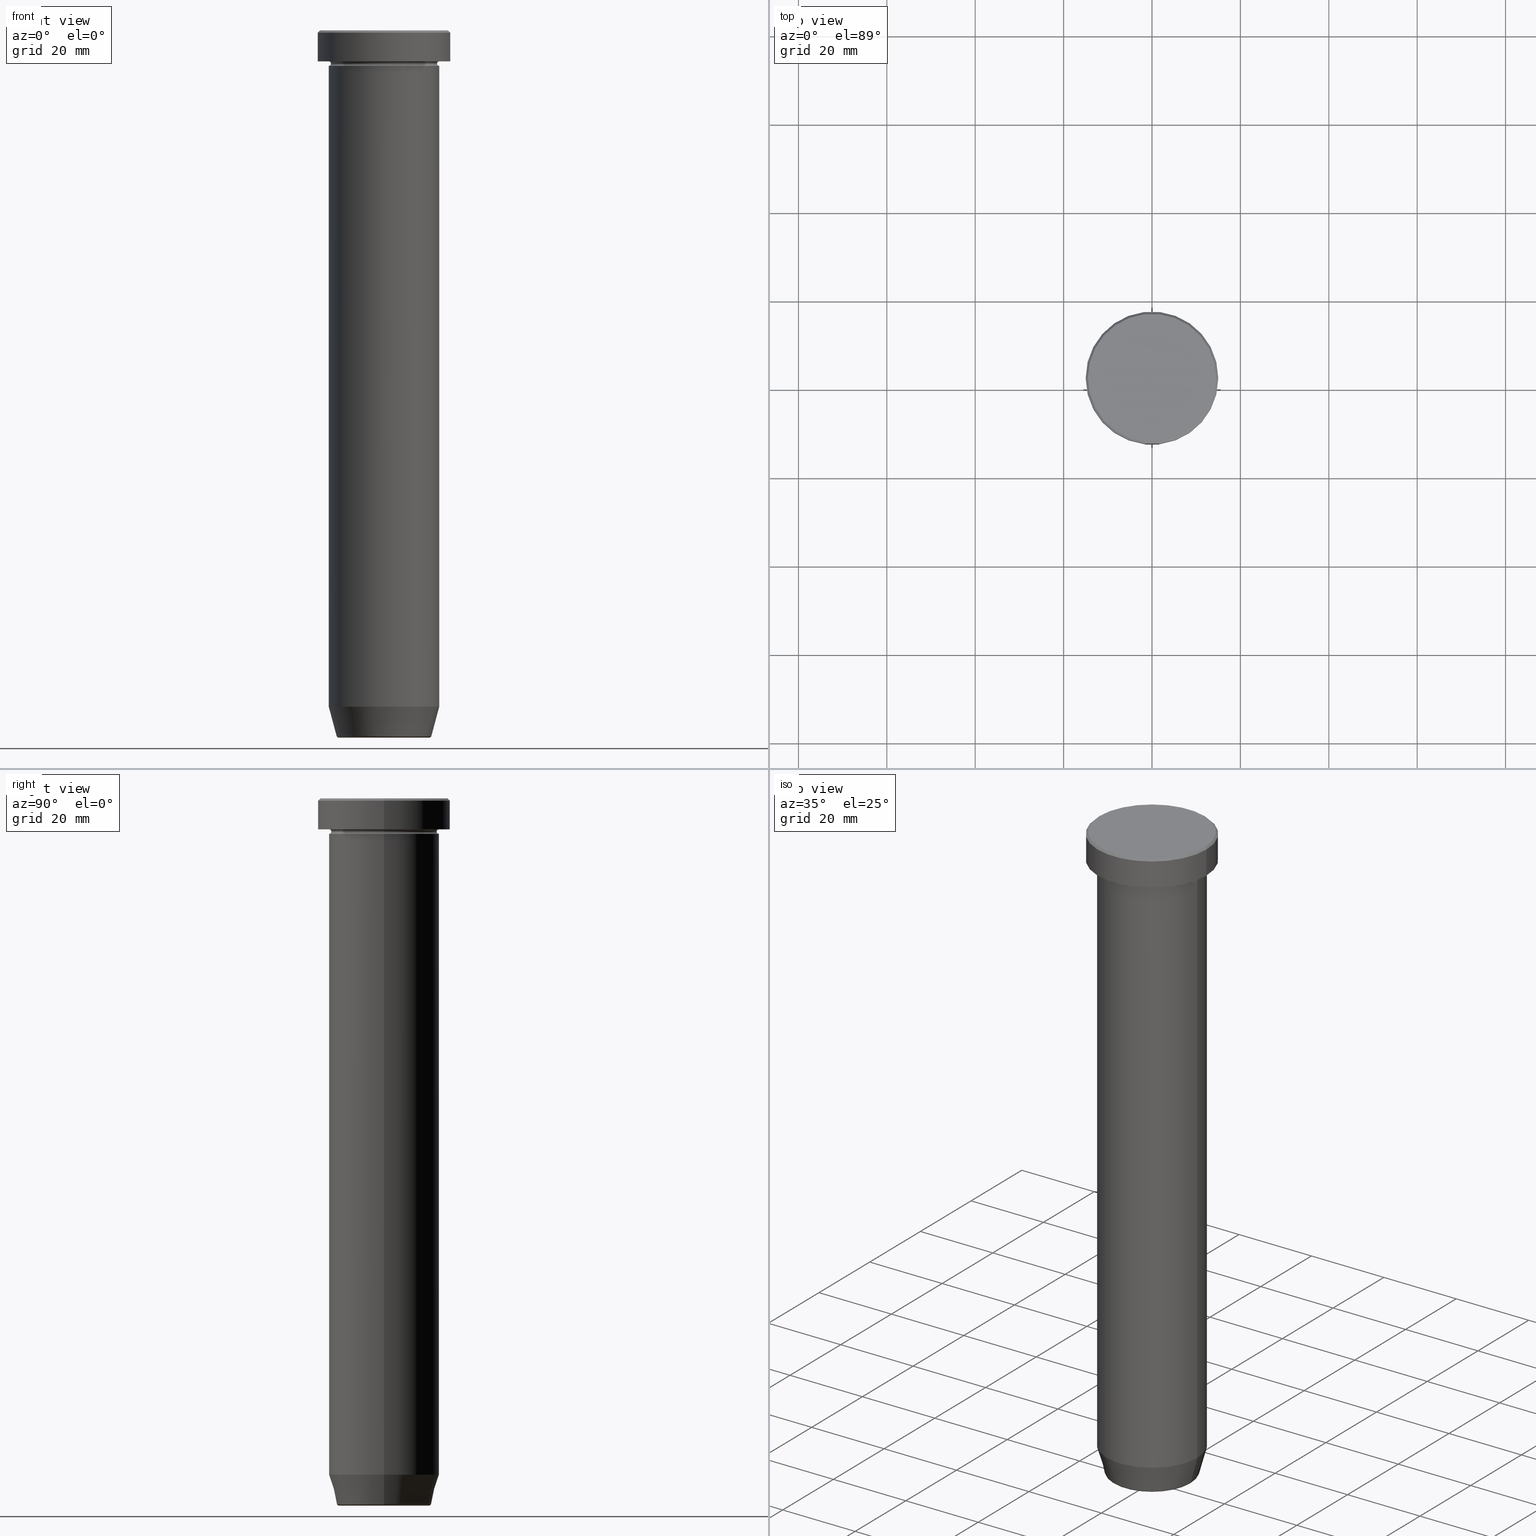
[diagram: canonical four-view strip — front | top / right | iso, engineering-drawing reading convention]
A machine part, canonical four-view strip (front | top / right | iso — engineering-drawing reading convention). The complete STEP part file that produces these views, byte-faithful:
ISO-10303-21;
HEADER;
FILE_DESCRIPTION (( 'STEP AP203' ),
    '1' );
FILE_NAME ('b4bc.STEP',
    '2024-01-02T20:44:51',
    ( '' ),
    ( '' ),
    'SwSTEP 2.0',
    'SolidWorks 2019',
    '' );
FILE_SCHEMA (( 'CONFIG_CONTROL_DESIGN' ));
ENDSEC;

DATA;
#1 = ORIENTED_EDGE ( 'NONE', *, *, #61, .T. ) ;
#2 = CONICAL_SURFACE ( 'NONE', #395, 10.62435565298213902, 0.2617993877991495744 ) ;
#3 = DIRECTION ( 'NONE',  ( 1.000000000000000000, 0.000000000000000000, 0.000000000000000000 ) ) ;
#4 = EDGE_LOOP ( 'NONE', ( #326, #8, #102, #85 ) ) ;
#5 = CC_DESIGN_PERSON_AND_ORGANIZATION_ASSIGNMENT ( #88, #465, ( #287 ) ) ;
#6 = AXIS2_PLACEMENT_3D ( 'NONE', #359, #312, #32 ) ;
#7 = CARTESIAN_POINT ( 'NONE',  ( 15.00000000000000000, 0.000000000000000000, 0.000000000000000000 ) ) ;
#8 = ORIENTED_EDGE ( 'NONE', *, *, #421, .F. ) ;
#9 = CARTESIAN_POINT ( 'NONE',  ( 14.49999999999999112, 1.775737858763660832E-15, 0.000000000000000000 ) ) ;
#10 = EDGE_LOOP ( 'NONE', ( #561, #515 ) ) ;
#11 = CARTESIAN_POINT ( 'NONE',  ( -15.00000000000000000, 1.836970198721029589E-15, -6.999999999999999112 ) ) ;
#12 = ORIENTED_EDGE ( 'NONE', *, *, #469, .F. ) ;
#13 = CLOSED_SHELL ( 'NONE', ( #195, #472, #598, #588, #367, #136, #259, #543, #546, #269, #414, #158, #302 ) ) ;
#14 = AXIS2_PLACEMENT_3D ( 'NONE', #169, #222, #492 ) ;
#15 = DIRECTION ( 'NONE',  ( 1.000000000000000000, 0.000000000000000000, 0.000000000000000000 ) ) ;
#16 = ORIENTED_EDGE ( 'NONE', *, *, #46, .T. ) ;
#17 = CARTESIAN_POINT ( 'NONE',  ( 0.000000000000000000, 0.000000000000000000, 0.000000000000000000 ) ) ;
#18 = ADVANCED_FACE ( 'NONE', ( #155 ), #379, .T. ) ;
#19 = ORIENTED_EDGE ( 'NONE', *, *, #86, .F. ) ;
#20 = DIRECTION ( 'NONE',  ( 0.000000000000000000, 0.000000000000000000, 1.000000000000000000 ) ) ;
#21 = DIRECTION ( 'NONE',  ( -0.2588190451025209060, 3.169619151431766790E-17, 0.9659258262890682012 ) ) ;
#22 = APPROVAL ( #281, 'NEUR�EN�' ) ;
#23 = APPROVAL_PERSON_ORGANIZATION ( #370, #294, #544 ) ;
#24 = COORDINATED_UNIVERSAL_TIME_OFFSET ( 1, 0, .AHEAD. ) ;
#25 = FACE_OUTER_BOUND ( 'NONE', #240, .T. ) ;
#26 = EDGE_CURVE ( 'NONE', #480, #92, #59, .T. ) ;
#27 = DIRECTION ( 'NONE',  ( -0.000000000000000000, -0.000000000000000000, 1.000000000000000000 ) ) ;
#28 = DIRECTION ( 'NONE',  ( -0.000000000000000000, -1.000000000000000000, -0.000000000000000000 ) ) ;
#29 = AXIS2_PLACEMENT_3D ( 'NONE', #417, #279, #325 ) ;
#30 = VECTOR ( 'NONE', #412, 1000.000000000000000 ) ;
#31 = EDGE_CURVE ( 'NONE', #285, #276, #453, .T. ) ;
#32 = DIRECTION ( 'NONE',  ( -1.000000000000000000, 0.000000000000000000, -0.000000000000000000 ) ) ;
#33 = ORIENTED_EDGE ( 'NONE', *, *, #383, .F. ) ;
#34 = DATE_AND_TIME ( #578, #476 ) ;
#35 = CARTESIAN_POINT ( 'NONE',  ( -12.50000000000000000, 0.000000000000000000, -6.999999999999999112 ) ) ;
#36 = COORDINATED_UNIVERSAL_TIME_OFFSET ( 1, 0, .AHEAD. ) ;
#37 = DIRECTION ( 'NONE',  ( 0.000000000000000000, 0.000000000000000000, -1.000000000000000000 ) ) ;
#38 = VERTEX_POINT ( 'NONE', #301 ) ;
#39 = CIRCLE ( 'NONE', #170, 10.24069215899266361 ) ;
#40 = DATE_AND_TIME ( #408, #99 ) ;
#41 = CARTESIAN_POINT ( 'NONE',  ( 0.000000000000000000, 0.000000000000000000, -159.5000000000000000 ) ) ;
#42 = ORIENTED_EDGE ( 'NONE', *, *, #523, .T. ) ;
#43 = DIRECTION ( 'NONE',  ( 1.000000000000000000, 0.000000000000000000, 0.000000000000000000 ) ) ;
#44 = VERTEX_POINT ( 'NONE', #487 ) ;
#45 = DATE_TIME_ROLE ( 'classification_date' ) ;
#46 = EDGE_CURVE ( 'NONE', #58, #180, #266, .T. ) ;
#47 = DIRECTION ( 'NONE',  ( -1.000000000000000000, 1.224646799147353454E-16, 0.000000000000000000 ) ) ;
#48 = ORIENTED_EDGE ( 'NONE', *, *, #443, .T. ) ;
#49 = AXIS2_PLACEMENT_3D ( 'NONE', #62, #522, #568 ) ;
#50 = TOROIDAL_SURFACE ( 'NONE', #190, 12.50000000000000000, 0.5000000000000000000 ) ;
#51 = CYLINDRICAL_SURFACE ( 'NONE', #316, 15.00000000000000000 ) ;
#52 = EDGE_CURVE ( 'NONE', #58, #285, #474, .T. ) ;
#53 = VERTEX_POINT ( 'NONE', #126 ) ;
#54 = AXIS2_PLACEMENT_3D ( 'NONE', #447, #28, #220 ) ;
#55 = LINE ( 'NONE', #431, #433 ) ;
#56 = VERTEX_POINT ( 'NONE', #353 ) ;
#57 = FACE_OUTER_BOUND ( 'NONE', #83, .T. ) ;
#58 = VERTEX_POINT ( 'NONE', #538 ) ;
#59 = LINE ( 'NONE', #208, #299 ) ;
#60 = VECTOR ( 'NONE', #457, 1000.000000000000000 ) ;
#61 = EDGE_CURVE ( 'NONE', #56, #230, #76, .T. ) ;
#62 = CARTESIAN_POINT ( 'NONE',  ( 0.000000000000000000, 0.000000000000000000, 0.000000000000000000 ) ) ;
#63 = EDGE_LOOP ( 'NONE', ( #33, #339, #280, #204 ) ) ;
#64 = CARTESIAN_POINT ( 'NONE',  ( 0.000000000000000000, 0.000000000000000000, -7.500000000000000000 ) ) ;
#65 = ORIENTED_EDGE ( 'NONE', *, *, #26, .F. ) ;
#66 = APPROVAL_STATUS ( 'not_yet_approved' ) ;
#67 = DIRECTION ( 'NONE',  ( 1.000000000000000000, 0.000000000000000000, 0.000000000000000000 ) ) ;
#68 = AXIS2_PLACEMENT_3D ( 'NONE', #527, #562, #97 ) ;
#69 = FACE_OUTER_BOUND ( 'NONE', #350, .T. ) ;
#70 = DIRECTION ( 'NONE',  ( -0.000000000000000000, -0.000000000000000000, 1.000000000000000000 ) ) ;
#71 = APPLICATION_CONTEXT ( 'configuration controlled 3d designs of mechanical parts and assemblies' ) ;
#72 = FACE_OUTER_BOUND ( 'NONE', #526, .T. ) ;
#73 = CARTESIAN_POINT ( 'NONE',  ( -10.62435565298213902, 1.301108314342766318E-15, -160.0000000000000000 ) ) ;
#74 = FACE_BOUND ( 'NONE', #432, .T. ) ;
#75 = DIRECTION ( 'NONE',  ( 1.000000000000000000, 0.000000000000000000, 0.000000000000000000 ) ) ;
#76 = CIRCLE ( 'NONE', #211, 10.72365507213719482 ) ;
#77 = ORGANIZATION ( 'NEUR�EN�', 'NEUR�EN�', '' ) ;
#78 = ADVANCED_FACE ( 'NONE', ( #167 ), #349, .F. ) ;
#79 = COORDINATED_UNIVERSAL_TIME_OFFSET ( 1, 0, .AHEAD. ) ;
#80 = AXIS2_PLACEMENT_3D ( 'NONE', #94, #144, #330 ) ;
#81 = CARTESIAN_POINT ( 'NONE',  ( 0.000000000000000000, 0.000000000000000000, 0.000000000000000000 ) ) ;
#82 = DIRECTION ( 'NONE',  ( -0.000000000000000000, -0.000000000000000000, 1.000000000000000000 ) ) ;
#83 = EDGE_LOOP ( 'NONE', ( #509, #324, #134, #369 ) ) ;
#84 = CARTESIAN_POINT ( 'NONE',  ( 12.50000000000000000, 0.000000000000000000, 0.000000000000000000 ) ) ;
#85 = ORIENTED_EDGE ( 'NONE', *, *, #61, .F. ) ;
#86 = EDGE_CURVE ( 'NONE', #413, #283, #295, .T. ) ;
#87 = AXIS2_PLACEMENT_3D ( 'NONE', #288, #429, #570 ) ;
#88 = PERSON_AND_ORGANIZATION ( #486, #77 ) ;
#89 = CLOSED_SHELL ( 'NONE', ( #351, #18, #164, #78, #175, #223, #406, #576 ) ) ;
#90 = CIRCLE ( 'NONE', #263, 10.72365507213719482 ) ;
#91 = CARTESIAN_POINT ( 'NONE',  ( 10.72365507213719305, 0.000000000000000000, -159.6294095225512706 ) ) ;
#92 = VERTEX_POINT ( 'NONE', #165 ) ;
#93 = DESIGN_CONTEXT ( 'detailed design', #171, 'design' ) ;
#94 = CARTESIAN_POINT ( 'NONE',  ( 0.000000000000000000, 0.000000000000000000, 0.000000000000000000 ) ) ;
#95 = VERTEX_POINT ( 'NONE', #503 ) ;
#96 = EDGE_CURVE ( 'NONE', #180, #475, #547, .T. ) ;
#97 = DIRECTION ( 'NONE',  ( 1.000000000000000000, 0.000000000000000000, 0.000000000000000000 ) ) ;
#98 = ORIENTED_EDGE ( 'NONE', *, *, #114, .T. ) ;
#99 = LOCAL_TIME ( 21, 44, 51.00000000000000000, #589 ) ;
#100 = CIRCLE ( 'NONE', #87, 12.50000000000000000 ) ;
#101 = DIRECTION ( 'NONE',  ( 1.000000000000000000, 0.000000000000000000, 0.000000000000000000 ) ) ;
#102 = ORIENTED_EDGE ( 'NONE', *, *, #469, .T. ) ;
#103 = CARTESIAN_POINT ( 'NONE',  ( 10.24069215899266361, 0.000000000000000000, -159.5000000000000000 ) ) ;
#104 = VERTEX_POINT ( 'NONE', #497 ) ;
#105 = DIRECTION ( 'NONE',  ( 0.000000000000000000, -0.000000000000000000, 1.000000000000000000 ) ) ;
#106 = DIRECTION ( 'NONE',  ( -0.000000000000000000, -0.000000000000000000, 1.000000000000000000 ) ) ;
#107 = EDGE_CURVE ( 'NONE', #56, #480, #587, .T. ) ;
#108 = DIRECTION ( 'NONE',  ( -1.000000000000000000, 0.000000000000000000, 0.000000000000000000 ) ) ;
#109 = AXIS2_PLACEMENT_3D ( 'NONE', #217, #27, #75 ) ;
#110 = AXIS2_PLACEMENT_3D ( 'NONE', #64, #451, #311 ) ;
#111 = DIRECTION ( 'NONE',  ( -1.000000000000000000, 0.000000000000000000, 0.000000000000000000 ) ) ;
#112 = AXIS2_PLACEMENT_3D ( 'NONE', #341, #106, #482 ) ;
#113 = AXIS2_PLACEMENT_3D ( 'NONE', #454, #119, #129 ) ;
#114 = EDGE_CURVE ( 'NONE', #104, #92, #529, .T. ) ;
#115 = ORIENTED_EDGE ( 'NONE', *, *, #541, .F. ) ;
#116 = MANIFOLD_SOLID_BREP ( 'Zaoblit4', #89 ) ;
#117 = EDGE_CURVE ( 'NONE', #180, #276, #422, .T. ) ;
#118 = APPLICATION_PROTOCOL_DEFINITION ( 'international standard', 'config_control_design', 1994, #71 ) ;
#119 = DIRECTION ( 'NONE',  ( -0.000000000000000000, -0.000000000000000000, 1.000000000000000000 ) ) ;
#120 = CARTESIAN_POINT ( 'NONE',  ( 0.000000000000000000, 0.000000000000000000, -159.5000000000000000 ) ) ;
#121 = DIRECTION ( 'NONE',  ( -1.000000000000000000, 0.000000000000000000, 0.000000000000000000 ) ) ;
#122 =( GEOMETRIC_REPRESENTATION_CONTEXT ( 3 ) GLOBAL_UNCERTAINTY_ASSIGNED_CONTEXT ( ( #467 ) ) GLOBAL_UNIT_ASSIGNED_CONTEXT ( ( #536, #449, #398 ) ) REPRESENTATION_CONTEXT ( 'NONE', 'WORKASPACE' ) );
#123 = DIRECTION ( 'NONE',  ( 0.000000000000000000, 0.000000000000000000, -1.000000000000000000 ) ) ;
#124 = DIRECTION ( 'NONE',  ( 1.000000000000000000, 0.000000000000000000, 0.000000000000000000 ) ) ;
#125 = ADVANCED_BREP_SHAPE_REPRESENTATION ( 'b4bc', ( #534, #116, #582 ), #122 ) ;
#126 = CARTESIAN_POINT ( 'NONE',  ( 12.50000000000000000, 0.000000000000000000, -153.0000000000000000 ) ) ;
#127 = EDGE_CURVE ( 'NONE', #372, #243, #584, .T. ) ;
#128 = DATE_TIME_ROLE ( 'creation_date' ) ;
#129 = DIRECTION ( 'NONE',  ( 1.000000000000000000, 0.000000000000000000, 0.000000000000000000 ) ) ;
#130 = VECTOR ( 'NONE', #473, 1000.000000000000000 ) ;
#131 = CIRCLE ( 'NONE', #68, 10.24069215899266361 ) ;
#132 = CIRCLE ( 'NONE', #328, 12.50000000000000000 ) ;
#133 = FACE_OUTER_BOUND ( 'NONE', #464, .T. ) ;
#134 = ORIENTED_EDGE ( 'NONE', *, *, #234, .T. ) ;
#135 = CALENDAR_DATE ( 2024, 2, 1 ) ;
#136 = ADVANCED_FACE ( 'NONE', ( #397 ), #213, .T. ) ;
#137 = DIRECTION ( 'NONE',  ( -1.000000000000000000, 0.000000000000000000, 0.000000000000000000 ) ) ;
#138 = ORIENTED_EDGE ( 'NONE', *, *, #86, .T. ) ;
#139 = DIRECTION ( 'NONE',  ( -0.000000000000000000, -0.000000000000000000, 1.000000000000000000 ) ) ;
#140 = VERTEX_POINT ( 'NONE', #174 ) ;
#141 = CC_DESIGN_APPROVAL ( #294, ( #287 ) ) ;
#142 = APPROVAL_ROLE ( '' ) ;
#143 = AXIS2_PLACEMENT_3D ( 'NONE', #320, #272, #556 ) ;
#144 = DIRECTION ( 'NONE',  ( 0.000000000000000000, -0.000000000000000000, 1.000000000000000000 ) ) ;
#145 = ORIENTED_EDGE ( 'NONE', *, *, #96, .T. ) ;
#146 = CYLINDRICAL_SURFACE ( 'NONE', #404, 12.50000000000000000 ) ;
#147 = EDGE_LOOP ( 'NONE', ( #557, #42, #48, #162 ) ) ;
#148 = CARTESIAN_POINT ( 'NONE',  ( -14.49999999999999112, 0.000000000000000000, 0.000000000000000000 ) ) ;
#149 = ORIENTED_EDGE ( 'NONE', *, *, #127, .T. ) ;
#150 = CIRCLE ( 'NONE', #202, 15.00000000000000000 ) ;
#151 = PLANE ( 'NONE',  #277 ) ;
#152 = ORIENTED_EDGE ( 'NONE', *, *, #443, .F. ) ;
#153 = CARTESIAN_POINT ( 'NONE',  ( -12.50000000000000000, 1.530808498934191521E-15, 0.000000000000000000 ) ) ;
#154 = EDGE_CURVE ( 'NONE', #180, #58, #238, .T. ) ;
#155 = FACE_OUTER_BOUND ( 'NONE', #466, .T. ) ;
#156 = DIRECTION ( 'NONE',  ( 1.000000000000000000, 0.000000000000000000, 0.000000000000000000 ) ) ;
#157 = EDGE_LOOP ( 'NONE', ( #347, #1, #333, #554 ) ) ;
#158 = ADVANCED_FACE ( 'NONE', ( #25 ), #248, .F. ) ;
#159 = CARTESIAN_POINT ( 'NONE',  ( 0.000000000000000000, 0.000000000000000000, -7.500000000000000000 ) ) ;
#160 = CIRCLE ( 'NONE', #380, 12.50000000000000000 ) ;
#161 = CIRCLE ( 'NONE', #483, 15.00000000000000000 ) ;
#162 = ORIENTED_EDGE ( 'NONE', *, *, #241, .F. ) ;
#163 = TOROIDAL_SURFACE ( 'NONE', #500, 10.24069215899266361, 0.5000000000000000000 ) ;
#164 = ADVANCED_FACE ( 'NONE', ( #317 ), #356, .T. ) ;
#165 = CARTESIAN_POINT ( 'NONE',  ( -12.50000000000000000, 1.530808498934191521E-15, -30.00000000000000000 ) ) ;
#166 = CARTESIAN_POINT ( 'NONE',  ( 0.000000000000000000, 0.000000000000000000, 0.000000000000000000 ) ) ;
#167 = FACE_OUTER_BOUND ( 'NONE', #460, .T. ) ;
#168 = FACE_OUTER_BOUND ( 'NONE', #4, .T. ) ;
#169 = CARTESIAN_POINT ( 'NONE',  ( 0.000000000000000000, 0.000000000000000000, -7.500000000000000000 ) ) ;
#170 = AXIS2_PLACEMENT_3D ( 'NONE', #176, #123, #583 ) ;
#171 = APPLICATION_CONTEXT ( 'configuration controlled 3d designs of mechanical parts and assemblies' ) ;
#172 = AXIS2_PLACEMENT_3D ( 'NONE', #364, #82, #590 ) ;
#173 = DIRECTION ( 'NONE',  ( -0.000000000000000000, -0.000000000000000000, 1.000000000000000000 ) ) ;
#174 = CARTESIAN_POINT ( 'NONE',  ( 12.50000000000000000, 0.000000000000000000, -30.00000000000000000 ) ) ;
#175 = ADVANCED_FACE ( 'NONE', ( #256 ), #445, .T. ) ;
#176 = CARTESIAN_POINT ( 'NONE',  ( 0.000000000000000000, 0.000000000000000000, -160.0000000000000000 ) ) ;
#177 = DIRECTION ( 'NONE',  ( 1.000000000000000000, 0.000000000000000000, 0.000000000000000000 ) ) ;
#178 = ORIENTED_EDGE ( 'NONE', *, *, #209, .F. ) ;
#179 = LINE ( 'NONE', #84, #30 ) ;
#180 = VERTEX_POINT ( 'NONE', #399 ) ;
#181 = CALENDAR_DATE ( 2024, 2, 1 ) ;
#182 = CARTESIAN_POINT ( 'NONE',  ( 0.000000000000000000, 0.000000000000000000, -160.0000000000000000 ) ) ;
#183 = ORIENTED_EDGE ( 'NONE', *, *, #52, .T. ) ;
#184 = DIRECTION ( 'NONE',  ( 1.000000000000000000, 0.000000000000000000, 0.000000000000000000 ) ) ;
#185 = VERTEX_POINT ( 'NONE', #585 ) ;
#186 = SECURITY_CLASSIFICATION_LEVEL ( 'unclassified' ) ;
#187 = DIRECTION ( 'NONE',  ( 1.224646799147353207E-16, 1.000000000000000000, 0.000000000000000000 ) ) ;
#188 = ORIENTED_EDGE ( 'NONE', *, *, #252, .T. ) ;
#189 = AXIS2_PLACEMENT_3D ( 'NONE', #535, #495, #579 ) ;
#190 = AXIS2_PLACEMENT_3D ( 'NONE', #207, #573, #108 ) ;
#191 = AXIS2_PLACEMENT_3D ( 'NONE', #249, #528, #111 ) ;
#192 = CIRCLE ( 'NONE', #504, 0.5000000000000004441 ) ;
#193 = CARTESIAN_POINT ( 'NONE',  ( 0.000000000000000000, 0.000000000000000000, -8.000000000000000000 ) ) ;
#194 = ORIENTED_EDGE ( 'NONE', *, *, #154, .T. ) ;
#195 = ADVANCED_FACE ( 'NONE', ( #310 ), #375, .T. ) ;
#196 = DIRECTION ( 'NONE',  ( 0.000000000000000000, 0.000000000000000000, -1.000000000000000000 ) ) ;
#197 = ORIENTED_EDGE ( 'NONE', *, *, #362, .T. ) ;
#198 = CC_DESIGN_DATE_AND_TIME_ASSIGNMENT ( #462, #128, ( #439 ) ) ;
#199 = DIRECTION ( 'NONE',  ( 0.7071067811865512365, 8.659560562354978464E-17, -0.7071067811865439090 ) ) ;
#200 = ORIENTED_EDGE ( 'NONE', *, *, #218, .F. ) ;
#201 = EDGE_CURVE ( 'NONE', #140, #38, #132, .T. ) ;
#202 = AXIS2_PLACEMENT_3D ( 'NONE', #426, #196, #384 ) ;
#203 = CARTESIAN_POINT ( 'NONE',  ( 0.000000000000000000, 0.000000000000000000, -30.00000000000000000 ) ) ;
#204 = ORIENTED_EDGE ( 'NONE', *, *, #537, .F. ) ;
#205 = DIRECTION ( 'NONE',  ( -0.7071067811865512365, 0.000000000000000000, -0.7071067811865439090 ) ) ;
#206 = ORIENTED_EDGE ( 'NONE', *, *, #241, .T. ) ;
#207 = CARTESIAN_POINT ( 'NONE',  ( 0.000000000000000000, 0.000000000000000000, -7.500000000000000000 ) ) ;
#208 = CARTESIAN_POINT ( 'NONE',  ( -12.50000000000000000, 1.530808498934191521E-15, 0.000000000000000000 ) ) ;
#209 = EDGE_CURVE ( 'NONE', #230, #56, #90, .T. ) ;
#210 = DIRECTION ( 'NONE',  ( 1.000000000000000000, 0.000000000000000000, 0.000000000000000000 ) ) ;
#211 = AXIS2_PLACEMENT_3D ( 'NONE', #361, #450, #121 ) ;
#212 = CC_DESIGN_APPROVAL ( #448, ( #439 ) ) ;
#213 = PLANE ( 'NONE',  #484 ) ;
#214 = CIRCLE ( 'NONE', #29, 12.50000000000000000 ) ;
#215 = DIRECTION ( 'NONE',  ( -0.000000000000000000, -0.000000000000000000, 1.000000000000000000 ) ) ;
#216 = CC_DESIGN_PERSON_AND_ORGANIZATION_ASSIGNMENT ( #555, #329, ( #287 ) ) ;
#217 = CARTESIAN_POINT ( 'NONE',  ( 0.000000000000000000, 0.000000000000000000, -7.500000000000000000 ) ) ;
#218 = EDGE_CURVE ( 'NONE', #53, #104, #179, .T. ) ;
#219 = FACE_OUTER_BOUND ( 'NONE', #512, .T. ) ;
#220 = DIRECTION ( 'NONE',  ( 0.000000000000000000, 0.000000000000000000, -1.000000000000000000 ) ) ;
#221 = AXIS2_PLACEMENT_3D ( 'NONE', #81, #540, #67 ) ;
#222 = DIRECTION ( 'NONE',  ( 0.000000000000000000, 0.000000000000000000, -1.000000000000000000 ) ) ;
#223 = ADVANCED_FACE ( 'NONE', ( #505 ), #2, .T. ) ;
#224 = PERSON_AND_ORGANIZATION ( #486, #77 ) ;
#225 = CARTESIAN_POINT ( 'NONE',  ( 12.50000000000000000, 1.530808498934191521E-15, -6.999999999999999112 ) ) ;
#226 = DIRECTION ( 'NONE',  ( -0.000000000000000000, -0.000000000000000000, 1.000000000000000000 ) ) ;
#227 = ORIENTED_EDGE ( 'NONE', *, *, #127, .F. ) ;
#228 = VECTOR ( 'NONE', #342, 1000.000000000000000 ) ;
#229 = CARTESIAN_POINT ( 'NONE',  ( 0.000000000000000000, 0.000000000000000000, 0.000000000000000000 ) ) ;
#230 = VERTEX_POINT ( 'NONE', #91 ) ;
#231 = CARTESIAN_POINT ( 'NONE',  ( 0.000000000000000000, 0.000000000000000000, -30.00000000000000000 ) ) ;
#232 = ORIENTED_EDGE ( 'NONE', *, *, #564, .T. ) ;
#233 = PERSON_AND_ORGANIZATION_ROLE ( 'creator' ) ;
#234 = EDGE_CURVE ( 'NONE', #58, #387, #455, .T. ) ;
#235 = CARTESIAN_POINT ( 'NONE',  ( 15.00000000000000000, 0.000000000000000000, -6.999999999999999112 ) ) ;
#236 = ORIENTED_EDGE ( 'NONE', *, *, #117, .F. ) ;
#237 = AXIS2_PLACEMENT_3D ( 'NONE', #120, #496, #531 ) ;
#238 = CIRCLE ( 'NONE', #109, 12.00000000000000000 ) ;
#239 = LINE ( 'NONE', #153, #130 ) ;
#240 = EDGE_LOOP ( 'NONE', ( #331, #16, #418, #366 ) ) ;
#241 = EDGE_CURVE ( 'NONE', #475, #387, #346, .T. ) ;
#242 = DIRECTION ( 'NONE',  ( 0.000000000000000000, -1.000000000000000000, 0.000000000000000000 ) ) ;
#243 = VERTEX_POINT ( 'NONE', #371 ) ;
#244 = EDGE_CURVE ( 'NONE', #276, #285, #278, .T. ) ;
#245 = DIRECTION ( 'NONE',  ( -0.000000000000000000, -0.000000000000000000, 1.000000000000000000 ) ) ;
#246 = ORIENTED_EDGE ( 'NONE', *, *, #309, .T. ) ;
#247 = CARTESIAN_POINT ( 'NONE',  ( -12.50000000000000000, 1.530808498934191521E-15, -153.0000000000000000 ) ) ;
#248 = TOROIDAL_SURFACE ( 'NONE', #14, 12.50000000000000000, 0.5000000000000000000 ) ;
#249 = CARTESIAN_POINT ( 'NONE',  ( 0.000000000000000000, 0.000000000000000000, -6.999999999999999112 ) ) ;
#250 = DIRECTION ( 'NONE',  ( 0.000000000000000000, 0.000000000000000000, -1.000000000000000000 ) ) ;
#251 = ORIENTED_EDGE ( 'NONE', *, *, #218, .T. ) ;
#252 = EDGE_CURVE ( 'NONE', #413, #95, #270, .T. ) ;
#253 = ORIENTED_EDGE ( 'NONE', *, *, #154, .F. ) ;
#254 = APPROVAL_ROLE ( '' ) ;
#255 = LOCAL_TIME ( 21, 44, 51.00000000000000000, #271 ) ;
#256 = FACE_OUTER_BOUND ( 'NONE', #437, .T. ) ;
#257 = PERSON_AND_ORGANIZATION ( #486, #77 ) ;
#258 = CARTESIAN_POINT ( 'NONE',  ( 0.000000000000000000, 0.000000000000000000, -30.00000000000000000 ) ) ;
#259 = ADVANCED_FACE ( 'NONE', ( #560 ), #275, .T. ) ;
#260 = CARTESIAN_POINT ( 'NONE',  ( 0.000000000000000000, 0.000000000000000000, 0.000000000000000000 ) ) ;
#261 = DIRECTION ( 'NONE',  ( -1.000000000000000000, -1.224646799147353454E-16, 0.000000000000000000 ) ) ;
#262 = DIRECTION ( 'NONE',  ( 1.000000000000000000, 0.000000000000000000, 0.000000000000000000 ) ) ;
#263 = AXIS2_PLACEMENT_3D ( 'NONE', #374, #226, #137 ) ;
#264 = CARTESIAN_POINT ( 'NONE',  ( 0.000000000000000000, 0.000000000000000000, -6.999999999999999112 ) ) ;
#265 = CIRCLE ( 'NONE', #591, 0.5000000000000004441 ) ;
#266 = CIRCLE ( 'NONE', #551, 12.00000000000000000 ) ;
#267 = VECTOR ( 'NONE', #553, 1000.000000000000000 ) ;
#268 = APPROVAL_DATE_TIME ( #373, #22 ) ;
#269 = ADVANCED_FACE ( 'NONE', ( #593 ), #146, .T. ) ;
#270 = LINE ( 'NONE', #381, #60 ) ;
#271 = COORDINATED_UNIVERSAL_TIME_OFFSET ( 1, 0, .AHEAD. ) ;
#272 = DIRECTION ( 'NONE',  ( 0.000000000000000000, 0.000000000000000000, -1.000000000000000000 ) ) ;
#273 = ORIENTED_EDGE ( 'NONE', *, *, #107, .T. ) ;
#274 = APPROVAL_STATUS ( 'not_yet_approved' ) ;
#275 = PLANE ( 'NONE',  #80 ) ;
#276 = VERTEX_POINT ( 'NONE', #35 ) ;
#277 = AXIS2_PLACEMENT_3D ( 'NONE', #525, #105, #389 ) ;
#278 = CIRCLE ( 'NONE', #172, 12.50000000000000000 ) ;
#279 = DIRECTION ( 'NONE',  ( -0.000000000000000000, -0.000000000000000000, 1.000000000000000000 ) ) ;
#280 = ORIENTED_EDGE ( 'NONE', *, *, #564, .F. ) ;
#281 = APPROVAL_STATUS ( 'not_yet_approved' ) ;
#282 = DIRECTION ( 'NONE',  ( 0.000000000000000000, 0.000000000000000000, -1.000000000000000000 ) ) ;
#283 = VERTEX_POINT ( 'NONE', #235 ) ;
#284 = CARTESIAN_POINT ( 'NONE',  ( -12.50000000000000000, 1.530808498934191521E-15, -8.000000000000000000 ) ) ;
#285 = VERTEX_POINT ( 'NONE', #225 ) ;
#286 = AXIS2_PLACEMENT_3D ( 'NONE', #499, #308, #261 ) ;
#287 = PRODUCT_DEFINITION_FORMATION_WITH_SPECIFIED_SOURCE ( 'LIBOVOLN�', '', #296, .NOT_KNOWN. ) ;
#288 = CARTESIAN_POINT ( 'NONE',  ( 0.000000000000000000, 0.000000000000000000, -8.000000000000000000 ) ) ;
#289 = ORIENTED_EDGE ( 'NONE', *, *, #314, .T. ) ;
#290 = FACE_OUTER_BOUND ( 'NONE', #376, .T. ) ;
#291 = ORIENTED_EDGE ( 'NONE', *, *, #244, .T. ) ;
#292 = FACE_OUTER_BOUND ( 'NONE', #471, .T. ) ;
#293 = ORIENTED_EDGE ( 'NONE', *, *, #114, .F. ) ;
#294 = APPROVAL ( #274, 'NEUR�EN�' ) ;
#295 = CIRCLE ( 'NONE', #319, 15.00000000000000000 ) ;
#296 = PRODUCT ( 'b4bc', 'b4bc', '', ( #303 ) ) ;
#297 = CC_DESIGN_APPROVAL ( #22, ( #520 ) ) ;
#298 = CARTESIAN_POINT ( 'NONE',  ( 12.50000000000000000, 0.000000000000000000, 0.000000000000000000 ) ) ;
#299 = VECTOR ( 'NONE', #440, 1000.000000000000000 ) ;
#300 = AXIS2_PLACEMENT_3D ( 'NONE', #193, #517, #3 ) ;
#301 = CARTESIAN_POINT ( 'NONE',  ( -12.50000000000000000, 1.530808498934191521E-15, -30.00000000000000000 ) ) ;
#302 = ADVANCED_FACE ( 'NONE', ( #133 ), #344, .T. ) ;
#303 = MECHANICAL_CONTEXT ( 'NONE', #71, 'mechanical' ) ;
#304 = EDGE_LOOP ( 'NONE', ( #149, #336 ) ) ;
#305 = DIRECTION ( 'NONE',  ( 0.000000000000000000, 0.000000000000000000, -1.000000000000000000 ) ) ;
#306 = CYLINDRICAL_SURFACE ( 'NONE', #577, 15.00000000000000000 ) ;
#307 = TOROIDAL_SURFACE ( 'NONE', #355, 12.50000000000000000, 0.5000000000000000000 ) ;
#308 = DIRECTION ( 'NONE',  ( -1.224646799147353207E-16, 1.000000000000000000, 0.000000000000000000 ) ) ;
#309 = EDGE_CURVE ( 'NONE', #92, #104, #160, .T. ) ;
#310 = FACE_OUTER_BOUND ( 'NONE', #63, .T. ) ;
#311 = DIRECTION ( 'NONE',  ( 1.000000000000000000, 0.000000000000000000, 0.000000000000000000 ) ) ;
#312 = DIRECTION ( 'NONE',  ( 0.000000000000000000, 0.000000000000000000, -1.000000000000000000 ) ) ;
#313 = CC_DESIGN_PERSON_AND_ORGANIZATION_ASSIGNMENT ( #224, #233, ( #439 ) ) ;
#314 = EDGE_CURVE ( 'NONE', #53, #480, #214, .T. ) ;
#315 = PERSON_AND_ORGANIZATION ( #486, #77 ) ;
#316 = AXIS2_PLACEMENT_3D ( 'NONE', #17, #485, #386 ) ;
#317 = FACE_OUTER_BOUND ( 'NONE', #343, .T. ) ;
#318 = AXIS2_PLACEMENT_3D ( 'NONE', #260, #358, #262 ) ;
#319 = AXIS2_PLACEMENT_3D ( 'NONE', #264, #405, #442 ) ;
#320 = CARTESIAN_POINT ( 'NONE',  ( 0.000000000000000000, 0.000000000000000000, 0.000000000000000000 ) ) ;
#321 = VERTEX_POINT ( 'NONE', #415 ) ;
#322 = APPROVAL_DATE_TIME ( #34, #448 ) ;
#323 = DIRECTION ( 'NONE',  ( -1.000000000000000000, 0.000000000000000000, 0.000000000000000000 ) ) ;
#324 = ORIENTED_EDGE ( 'NONE', *, *, #46, .F. ) ;
#325 = DIRECTION ( 'NONE',  ( 1.000000000000000000, 0.000000000000000000, 0.000000000000000000 ) ) ;
#326 = ORIENTED_EDGE ( 'NONE', *, *, #362, .F. ) ;
#327 = CC_DESIGN_SECURITY_CLASSIFICATION ( #520, ( #287 ) ) ;
#328 = AXIS2_PLACEMENT_3D ( 'NONE', #231, #139, #43 ) ;
#329 = PERSON_AND_ORGANIZATION_ROLE ( 'creator' ) ;
#330 = DIRECTION ( 'NONE',  ( 1.000000000000000000, 0.000000000000000000, 0.000000000000000000 ) ) ;
#331 = ORIENTED_EDGE ( 'NONE', *, *, #52, .F. ) ;
#332 = DIRECTION ( 'NONE',  ( -0.000000000000000000, -0.000000000000000000, 1.000000000000000000 ) ) ;
#333 = ORIENTED_EDGE ( 'NONE', *, *, #334, .T. ) ;
#334 = EDGE_CURVE ( 'NONE', #230, #53, #463, .T. ) ;
#335 = CARTESIAN_POINT ( 'NONE',  ( 0.000000000000000000, 0.000000000000000000, -6.999999999999999112 ) ) ;
#336 = ORIENTED_EDGE ( 'NONE', *, *, #383, .T. ) ;
#337 = LOCAL_TIME ( 21, 44, 51.00000000000000000, #79 ) ;
#338 = DIRECTION ( 'NONE',  ( -0.000000000000000000, -0.000000000000000000, 1.000000000000000000 ) ) ;
#339 = ORIENTED_EDGE ( 'NONE', *, *, #541, .T. ) ;
#340 = CARTESIAN_POINT ( 'NONE',  ( 0.000000000000000000, 0.000000000000000000, -153.0000000000000000 ) ) ;
#341 = CARTESIAN_POINT ( 'NONE',  ( 0.000000000000000000, 0.000000000000000000, -160.0000000000000000 ) ) ;
#342 = DIRECTION ( 'NONE',  ( -0.000000000000000000, -0.000000000000000000, 1.000000000000000000 ) ) ;
#343 = EDGE_LOOP ( 'NONE', ( #289, #382, #293, #200 ) ) ;
#344 = CONICAL_SURFACE ( 'NONE', #143, 14.49999999999999112, 0.7853981633974533860 ) ;
#345 = LINE ( 'NONE', #7, #228 ) ;
#346 = CIRCLE ( 'NONE', #300, 12.50000000000000000 ) ;
#347 = ORIENTED_EDGE ( 'NONE', *, *, #107, .F. ) ;
#348 = APPLICATION_PROTOCOL_DEFINITION ( 'international standard', 'config_control_design', 1994, #171 ) ;
#349 = PLANE ( 'NONE',  #6 ) ;
#350 = EDGE_LOOP ( 'NONE', ( #253, #145, #206, #456 ) ) ;
#351 = ADVANCED_FACE ( 'NONE', ( #511 ), #163, .T. ) ;
#352 = DIRECTION ( 'NONE',  ( 0.000000000000000000, 0.000000000000000000, -1.000000000000000000 ) ) ;
#353 = CARTESIAN_POINT ( 'NONE',  ( -10.72365507213719305, 1.422038742429750516E-15, -159.6294095225512706 ) ) ;
#354 = PERSON_AND_ORGANIZATION_ROLE ( 'design_owner' ) ;
#355 = AXIS2_PLACEMENT_3D ( 'NONE', #159, #481, #156 ) ;
#356 = CYLINDRICAL_SURFACE ( 'NONE', #221, 12.50000000000000000 ) ;
#357 = AXIS2_PLACEMENT_3D ( 'NONE', #403, #215, #124 ) ;
#358 = DIRECTION ( 'NONE',  ( -0.000000000000000000, -0.000000000000000000, 1.000000000000000000 ) ) ;
#359 = CARTESIAN_POINT ( 'NONE',  ( 0.000000000000000000, -1.734723475976807094E-15, -30.00000000000000000 ) ) ;
#360 = CC_DESIGN_PERSON_AND_ORGANIZATION_ASSIGNMENT ( #592, #548, ( #520 ) ) ;
#361 = CARTESIAN_POINT ( 'NONE',  ( 0.000000000000000000, 0.000000000000000000, -159.6294095225512706 ) ) ;
#362 = EDGE_CURVE ( 'NONE', #321, #56, #192, .T. ) ;
#363 = TOROIDAL_SURFACE ( 'NONE', #110, 12.50000000000000000, 0.5000000000000000000 ) ;
#364 = CARTESIAN_POINT ( 'NONE',  ( 0.000000000000000000, 0.000000000000000000, -6.999999999999999112 ) ) ;
#365 = CIRCLE ( 'NONE', #502, 12.50000000000000000 ) ;
#366 = ORIENTED_EDGE ( 'NONE', *, *, #31, .F. ) ;
#367 = ADVANCED_FACE ( 'NONE', ( #290 ), #51, .T. ) ;
#368 = CARTESIAN_POINT ( 'NONE',  ( 10.62435565298213902, 0.000000000000000000, -160.0000000000000000 ) ) ;
#369 = ORIENTED_EDGE ( 'NONE', *, *, #434, .T. ) ;
#370 = PERSON_AND_ORGANIZATION ( #486, #77 ) ;
#371 = CARTESIAN_POINT ( 'NONE',  ( 14.49999999999999112, 1.806354028742345013E-15, 0.000000000000000000 ) ) ;
#372 = VERTEX_POINT ( 'NONE', #148 ) ;
#373 = DATE_AND_TIME ( #181, #388 ) ;
#374 = CARTESIAN_POINT ( 'NONE',  ( 0.000000000000000000, 0.000000000000000000, -159.6294095225512706 ) ) ;
#375 = CONICAL_SURFACE ( 'NONE', #530, 14.49999999999999112, 0.7853981633974533860 ) ;
#376 = EDGE_LOOP ( 'NONE', ( #521, #188, #232, #490 ) ) ;
#377 = CC_DESIGN_DATE_AND_TIME_ASSIGNMENT ( #507, #45, ( #520 ) ) ;
#378 = CIRCLE ( 'NONE', #396, 12.50000000000000000 ) ;
#379 = CONICAL_SURFACE ( 'NONE', #112, 10.62435565298213902, 0.2617993877991495744 ) ;
#380 = AXIS2_PLACEMENT_3D ( 'NONE', #558, #470, #459 ) ;
#381 = CARTESIAN_POINT ( 'NONE',  ( -15.00000000000000000, 1.836970198721029589E-15, 0.000000000000000000 ) ) ;
#382 = ORIENTED_EDGE ( 'NONE', *, *, #26, .T. ) ;
#383 = EDGE_CURVE ( 'NONE', #243, #372, #575, .T. ) ;
#384 = DIRECTION ( 'NONE',  ( 1.000000000000000000, 0.000000000000000000, 0.000000000000000000 ) ) ;
#385 = ORIENTED_EDGE ( 'NONE', *, *, #572, .F. ) ;
#386 = DIRECTION ( 'NONE',  ( 1.000000000000000000, 0.000000000000000000, 0.000000000000000000 ) ) ;
#387 = VERTEX_POINT ( 'NONE', #565 ) ;
#388 = LOCAL_TIME ( 21, 44, 51.00000000000000000, #36 ) ;
#389 = DIRECTION ( 'NONE',  ( 1.000000000000000000, 0.000000000000000000, 0.000000000000000000 ) ) ;
#390 = EDGE_LOOP ( 'NONE', ( #385, #197, #178, #12 ) ) ;
#391 = LINE ( 'NONE', #9, #444 ) ;
#392 = EDGE_CURVE ( 'NONE', #38, #475, #239, .T. ) ;
#393 = ORIENTED_EDGE ( 'NONE', *, *, #201, .T. ) ;
#394 = CARTESIAN_POINT ( 'NONE',  ( 0.000000000000000000, 0.000000000000000000, -7.500000000000000000 ) ) ;
#395 = AXIS2_PLACEMENT_3D ( 'NONE', #182, #332, #184 ) ;
#396 = AXIS2_PLACEMENT_3D ( 'NONE', #340, #479, #15 ) ;
#397 = FACE_OUTER_BOUND ( 'NONE', #10, .T. ) ;
#398 =( NAMED_UNIT ( * ) SI_UNIT ( $, .STERADIAN. ) SOLID_ANGLE_UNIT ( ) );
#399 = CARTESIAN_POINT ( 'NONE',  ( -12.00000000000000000, 1.500192328955507734E-15, -7.500000000000000000 ) ) ;
#400 = DIRECTION ( 'NONE',  ( 1.000000000000000000, 0.000000000000000000, 0.000000000000000000 ) ) ;
#401 = DIRECTION ( 'NONE',  ( -1.000000000000000000, 0.000000000000000000, -0.000000000000000000 ) ) ;
#402 = CC_DESIGN_PERSON_AND_ORGANIZATION_ASSIGNMENT ( #257, #354, ( #296 ) ) ;
#403 = CARTESIAN_POINT ( 'NONE',  ( 0.000000000000000000, 0.000000000000000000, 0.000000000000000000 ) ) ;
#404 = AXIS2_PLACEMENT_3D ( 'NONE', #229, #514, #409 ) ;
#405 = DIRECTION ( 'NONE',  ( -0.000000000000000000, -0.000000000000000000, 1.000000000000000000 ) ) ;
#406 = ADVANCED_FACE ( 'NONE', ( #292 ), #151, .F. ) ;
#407 = ORIENTED_EDGE ( 'NONE', *, *, #209, .T. ) ;
#408 = CALENDAR_DATE ( 2024, 2, 1 ) ;
#409 = DIRECTION ( 'NONE',  ( 1.000000000000000000, 0.000000000000000000, 0.000000000000000000 ) ) ;
#410 = ORIENTED_EDGE ( 'NONE', *, *, #516, .F. ) ;
#411 = VECTOR ( 'NONE', #245, 1000.000000000000000 ) ;
#412 = DIRECTION ( 'NONE',  ( -0.000000000000000000, -0.000000000000000000, 1.000000000000000000 ) ) ;
#413 = VERTEX_POINT ( 'NONE', #11 ) ;
#414 = ADVANCED_FACE ( 'NONE', ( #57 ), #307, .F. ) ;
#415 = CARTESIAN_POINT ( 'NONE',  ( -10.24069215899266361, 1.283696036640842967E-15, -160.0000000000000000 ) ) ;
#416 = ORIENTED_EDGE ( 'NONE', *, *, #488, .F. ) ;
#417 = CARTESIAN_POINT ( 'NONE',  ( 0.000000000000000000, 0.000000000000000000, -153.0000000000000000 ) ) ;
#418 = ORIENTED_EDGE ( 'NONE', *, *, #117, .T. ) ;
#419 = CARTESIAN_POINT ( 'NONE',  ( 12.50000000000000000, 0.000000000000000000, -7.500000000000000000 ) ) ;
#420 = EDGE_CURVE ( 'NONE', #283, #185, #345, .T. ) ;
#421 = EDGE_CURVE ( 'NONE', #44, #321, #131, .T. ) ;
#422 = CIRCLE ( 'NONE', #54, 0.5000000000000004441 ) ;
#423 = ORIENTED_EDGE ( 'NONE', *, *, #244, .F. ) ;
#424 = APPROVAL_PERSON_ORGANIZATION ( #491, #448, #254 ) ;
#425 = VECTOR ( 'NONE', #21, 1000.000000000000000 ) ;
#426 = CARTESIAN_POINT ( 'NONE',  ( 0.000000000000000000, 0.000000000000000000, -0.5000000000000039968 ) ) ;
#427 = ORIENTED_EDGE ( 'NONE', *, *, #334, .F. ) ;
#428 = PRODUCT_DEFINITION_SHAPE ( 'NONE', 'NONE',  #439 ) ;
#429 = DIRECTION ( 'NONE',  ( -0.000000000000000000, -0.000000000000000000, 1.000000000000000000 ) ) ;
#430 = ORIENTED_EDGE ( 'NONE', *, *, #421, .T. ) ;
#431 = CARTESIAN_POINT ( 'NONE',  ( -14.49999999999999112, 0.000000000000000000, 0.000000000000000000 ) ) ;
#432 = EDGE_LOOP ( 'NONE', ( #291, #552 ) ) ;
#433 = VECTOR ( 'NONE', #205, 1000.000000000000000 ) ;
#434 = EDGE_CURVE ( 'NONE', #387, #475, #100, .T. ) ;
#435 = AXIS2_PLACEMENT_3D ( 'NONE', #419, #550, #282 ) ;
#436 = LINE ( 'NONE', #298, #411 ) ;
#437 = EDGE_LOOP ( 'NONE', ( #65, #478, #251, #563 ) ) ;
#438 = FACE_OUTER_BOUND ( 'NONE', #571, .T. ) ;
#439 = PRODUCT_DEFINITION ( 'NEZN�M�', '', #287, #93 ) ;
#440 = DIRECTION ( 'NONE',  ( -0.000000000000000000, -0.000000000000000000, 1.000000000000000000 ) ) ;
#441 = CARTESIAN_POINT ( 'NONE',  ( 0.000000000000000000, 0.000000000000000000, 0.000000000000000000 ) ) ;
#442 = DIRECTION ( 'NONE',  ( 1.000000000000000000, 0.000000000000000000, 0.000000000000000000 ) ) ;
#443 = EDGE_CURVE ( 'NONE', #140, #387, #436, .T. ) ;
#444 = VECTOR ( 'NONE', #199, 1000.000000000000000 ) ;
#445 = CYLINDRICAL_SURFACE ( 'NONE', #357, 12.50000000000000000 ) ;
#446 = DIRECTION ( 'NONE',  ( 1.000000000000000000, 0.000000000000000000, 0.000000000000000000 ) ) ;
#447 = CARTESIAN_POINT ( 'NONE',  ( -12.50000000000000000, 0.000000000000000000, -7.500000000000000000 ) ) ;
#448 = APPROVAL ( #66, 'NEUR�EN�' ) ;
#449 =( NAMED_UNIT ( * ) PLANE_ANGLE_UNIT ( ) SI_UNIT ( $, .RADIAN. ) );
#450 = DIRECTION ( 'NONE',  ( -0.000000000000000000, -0.000000000000000000, 1.000000000000000000 ) ) ;
#451 = DIRECTION ( 'NONE',  ( -0.000000000000000000, -0.000000000000000000, 1.000000000000000000 ) ) ;
#452 = CIRCLE ( 'NONE', #493, 15.00000000000000000 ) ;
#453 = CIRCLE ( 'NONE', #191, 12.50000000000000000 ) ;
#454 = CARTESIAN_POINT ( 'NONE',  ( 0.000000000000000000, 0.000000000000000000, 0.000000000000000000 ) ) ;
#455 = CIRCLE ( 'NONE', #435, 0.5000000000000004441 ) ;
#456 = ORIENTED_EDGE ( 'NONE', *, *, #234, .F. ) ;
#457 = DIRECTION ( 'NONE',  ( -0.000000000000000000, -0.000000000000000000, 1.000000000000000000 ) ) ;
#458 = SHAPE_DEFINITION_REPRESENTATION ( #428, #125 ) ;
#459 = DIRECTION ( 'NONE',  ( 1.000000000000000000, 0.000000000000000000, 0.000000000000000000 ) ) ;
#460 = EDGE_LOOP ( 'NONE', ( #98, #246 ) ) ;
#461 = EDGE_CURVE ( 'NONE', #480, #53, #378, .T. ) ;
#462 = DATE_AND_TIME ( #135, #255 ) ;
#463 = LINE ( 'NONE', #368, #267 ) ;
#464 = EDGE_LOOP ( 'NONE', ( #115, #227, #596, #416 ) ) ;
#465 = PERSON_AND_ORGANIZATION_ROLE ( 'design_supplier' ) ;
#466 = EDGE_LOOP ( 'NONE', ( #407, #273, #559, #427 ) ) ;
#467 = UNCERTAINTY_MEASURE_WITH_UNIT (LENGTH_MEASURE( 1.000000000000000082E-05 ), #536, 'distance_accuracy_value', 'NONE');
#468 = CALENDAR_DATE ( 2024, 2, 1 ) ;
#469 = EDGE_CURVE ( 'NONE', #44, #230, #265, .T. ) ;
#470 = DIRECTION ( 'NONE',  ( -0.000000000000000000, -0.000000000000000000, 1.000000000000000000 ) ) ;
#471 = EDGE_LOOP ( 'NONE', ( #430, #506 ) ) ;
#472 = ADVANCED_FACE ( 'NONE', ( #438 ), #50, .F. ) ;
#473 = DIRECTION ( 'NONE',  ( -0.000000000000000000, -0.000000000000000000, 1.000000000000000000 ) ) ;
#474 = CIRCLE ( 'NONE', #286, 0.5000000000000004441 ) ;
#475 = VERTEX_POINT ( 'NONE', #284 ) ;
#476 = LOCAL_TIME ( 21, 44, 51.00000000000000000, #24 ) ;
#477 = DIRECTION ( 'NONE',  ( 1.000000000000000000, 0.000000000000000000, 0.000000000000000000 ) ) ;
#478 = ORIENTED_EDGE ( 'NONE', *, *, #461, .T. ) ;
#479 = DIRECTION ( 'NONE',  ( -0.000000000000000000, -0.000000000000000000, 1.000000000000000000 ) ) ;
#480 = VERTEX_POINT ( 'NONE', #247 ) ;
#481 = DIRECTION ( 'NONE',  ( -0.000000000000000000, -0.000000000000000000, 1.000000000000000000 ) ) ;
#482 = DIRECTION ( 'NONE',  ( 1.000000000000000000, 0.000000000000000000, 0.000000000000000000 ) ) ;
#483 = AXIS2_PLACEMENT_3D ( 'NONE', #335, #519, #101 ) ;
#484 = AXIS2_PLACEMENT_3D ( 'NONE', #581, #305, #401 ) ;
#485 = DIRECTION ( 'NONE',  ( -0.000000000000000000, -0.000000000000000000, 1.000000000000000000 ) ) ;
#486 = PERSON ( 'NEUR�EN�', 'NEUR�EN�', 'NEUR�EN�', ('NEUR�EN�'), ('NEUR�EN�'), ('NEUR�EN�') ) ;
#487 = CARTESIAN_POINT ( 'NONE',  ( 10.24069215899266361, 0.000000000000000000, -160.0000000000000000 ) ) ;
#488 = EDGE_CURVE ( 'NONE', #185, #95, #150, .T. ) ;
#489 = DIRECTION ( 'NONE',  ( -1.000000000000000000, 0.000000000000000000, -0.000000000000000000 ) ) ;
#490 = ORIENTED_EDGE ( 'NONE', *, *, #420, .F. ) ;
#491 = PERSON_AND_ORGANIZATION ( #486, #77 ) ;
#492 = DIRECTION ( 'NONE',  ( -1.000000000000000000, 0.000000000000000000, 0.000000000000000000 ) ) ;
#493 = AXIS2_PLACEMENT_3D ( 'NONE', #498, #352, #400 ) ;
#494 = PLANE ( 'NONE',  #549 ) ;
#495 = DIRECTION ( 'NONE',  ( 1.224646799147353207E-16, 1.000000000000000000, 0.000000000000000000 ) ) ;
#496 = DIRECTION ( 'NONE',  ( -0.000000000000000000, -0.000000000000000000, 1.000000000000000000 ) ) ;
#497 = CARTESIAN_POINT ( 'NONE',  ( 12.50000000000000000, 0.000000000000000000, -30.00000000000000000 ) ) ;
#498 = CARTESIAN_POINT ( 'NONE',  ( 0.000000000000000000, 0.000000000000000000, -0.5000000000000039968 ) ) ;
#499 = CARTESIAN_POINT ( 'NONE',  ( 12.50000000000000000, 1.530808498934191521E-15, -7.500000000000000000 ) ) ;
#500 = AXIS2_PLACEMENT_3D ( 'NONE', #41, #599, #508 ) ;
#501 = PRODUCT_RELATED_PRODUCT_CATEGORY ( 'detail', '', ( #296 ) ) ;
#502 = AXIS2_PLACEMENT_3D ( 'NONE', #203, #338, #477 ) ;
#503 = CARTESIAN_POINT ( 'NONE',  ( -15.00000000000000000, 1.836970198721029589E-15, -0.5000000000000039968 ) ) ;
#504 = AXIS2_PLACEMENT_3D ( 'NONE', #595, #187, #47 ) ;
#505 = FACE_OUTER_BOUND ( 'NONE', #157, .T. ) ;
#506 = ORIENTED_EDGE ( 'NONE', *, *, #572, .T. ) ;
#507 = DATE_AND_TIME ( #468, #337 ) ;
#508 = DIRECTION ( 'NONE',  ( 1.000000000000000000, 0.000000000000000000, 0.000000000000000000 ) ) ;
#509 = ORIENTED_EDGE ( 'NONE', *, *, #96, .F. ) ;
#510 = TOROIDAL_SURFACE ( 'NONE', #237, 10.24069215899266361, 0.5000000000000000000 ) ;
#511 = FACE_OUTER_BOUND ( 'NONE', #390, .T. ) ;
#512 = EDGE_LOOP ( 'NONE', ( #532, #138, #524, #567 ) ) ;
#513 = AXIS2_PLACEMENT_3D ( 'NONE', #258, #70, #545 ) ;
#514 = DIRECTION ( 'NONE',  ( -0.000000000000000000, -0.000000000000000000, 1.000000000000000000 ) ) ;
#515 = ORIENTED_EDGE ( 'NONE', *, *, #523, .F. ) ;
#516 = EDGE_CURVE ( 'NONE', #283, #413, #161, .T. ) ;
#517 = DIRECTION ( 'NONE',  ( -0.000000000000000000, -0.000000000000000000, 1.000000000000000000 ) ) ;
#518 = ORIENTED_EDGE ( 'NONE', *, *, #392, .T. ) ;
#519 = DIRECTION ( 'NONE',  ( -0.000000000000000000, -0.000000000000000000, 1.000000000000000000 ) ) ;
#520 = SECURITY_CLASSIFICATION ( '', '', #186 ) ;
#521 = ORIENTED_EDGE ( 'NONE', *, *, #516, .T. ) ;
#522 = DIRECTION ( 'NONE',  ( -0.000000000000000000, -0.000000000000000000, 1.000000000000000000 ) ) ;
#523 = EDGE_CURVE ( 'NONE', #38, #140, #365, .T. ) ;
#524 = ORIENTED_EDGE ( 'NONE', *, *, #420, .T. ) ;
#525 = CARTESIAN_POINT ( 'NONE',  ( 0.000000000000000000, 1.347111479062088523E-14, -160.0000000000000000 ) ) ;
#526 = EDGE_LOOP ( 'NONE', ( #393, #518, #569, #152 ) ) ;
#527 = CARTESIAN_POINT ( 'NONE',  ( 0.000000000000000000, 0.000000000000000000, -160.0000000000000000 ) ) ;
#528 = DIRECTION ( 'NONE',  ( -0.000000000000000000, -0.000000000000000000, 1.000000000000000000 ) ) ;
#529 = CIRCLE ( 'NONE', #513, 12.50000000000000000 ) ;
#530 = AXIS2_PLACEMENT_3D ( 'NONE', #542, #37, #323 ) ;
#531 = DIRECTION ( 'NONE',  ( 1.000000000000000000, 0.000000000000000000, 0.000000000000000000 ) ) ;
#532 = ORIENTED_EDGE ( 'NONE', *, *, #252, .F. ) ;
#533 = CYLINDRICAL_SURFACE ( 'NONE', #318, 12.50000000000000000 ) ;
#534 = MANIFOLD_SOLID_BREP ( 'Zkosen�1', #13 ) ;
#535 = CARTESIAN_POINT ( 'NONE',  ( -12.50000000000000000, 1.530808498934191521E-15, -7.500000000000000000 ) ) ;
#536 =( LENGTH_UNIT ( ) NAMED_UNIT ( * ) SI_UNIT ( .MILLI., .METRE. ) );
#537 = EDGE_CURVE ( 'NONE', #372, #95, #55, .T. ) ;
#538 = CARTESIAN_POINT ( 'NONE',  ( 12.00000000000000000, 0.000000000000000000, -7.500000000000000000 ) ) ;
#539 = DIRECTION ( 'NONE',  ( 0.000000000000000000, 0.000000000000000000, -1.000000000000000000 ) ) ;
#540 = DIRECTION ( 'NONE',  ( -0.000000000000000000, -0.000000000000000000, 1.000000000000000000 ) ) ;
#541 = EDGE_CURVE ( 'NONE', #243, #185, #391, .T. ) ;
#542 = CARTESIAN_POINT ( 'NONE',  ( 0.000000000000000000, 0.000000000000000000, 0.000000000000000000 ) ) ;
#543 = ADVANCED_FACE ( 'NONE', ( #219 ), #306, .T. ) ;
#544 = APPROVAL_ROLE ( '' ) ;
#545 = DIRECTION ( 'NONE',  ( 1.000000000000000000, 0.000000000000000000, 0.000000000000000000 ) ) ;
#546 = ADVANCED_FACE ( 'NONE', ( #74, #580 ), #494, .T. ) ;
#547 = CIRCLE ( 'NONE', #189, 0.5000000000000004441 ) ;
#548 = PERSON_AND_ORGANIZATION_ROLE ( 'classification_officer' ) ;
#549 = AXIS2_PLACEMENT_3D ( 'NONE', #586, #539, #489 ) ;
#550 = DIRECTION ( 'NONE',  ( 0.000000000000000000, -1.000000000000000000, 0.000000000000000000 ) ) ;
#551 = AXIS2_PLACEMENT_3D ( 'NONE', #394, #574, #177 ) ;
#552 = ORIENTED_EDGE ( 'NONE', *, *, #31, .T. ) ;
#553 = DIRECTION ( 'NONE',  ( 0.2588190451025209060, 0.000000000000000000, 0.9659258262890682012 ) ) ;
#554 = ORIENTED_EDGE ( 'NONE', *, *, #461, .F. ) ;
#555 = PERSON_AND_ORGANIZATION ( #486, #77 ) ;
#556 = DIRECTION ( 'NONE',  ( -1.000000000000000000, 0.000000000000000000, 0.000000000000000000 ) ) ;
#557 = ORIENTED_EDGE ( 'NONE', *, *, #392, .F. ) ;
#558 = CARTESIAN_POINT ( 'NONE',  ( 0.000000000000000000, 0.000000000000000000, -30.00000000000000000 ) ) ;
#559 = ORIENTED_EDGE ( 'NONE', *, *, #314, .F. ) ;
#560 = FACE_OUTER_BOUND ( 'NONE', #304, .T. ) ;
#561 = ORIENTED_EDGE ( 'NONE', *, *, #201, .F. ) ;
#562 = DIRECTION ( 'NONE',  ( 0.000000000000000000, 0.000000000000000000, -1.000000000000000000 ) ) ;
#563 = ORIENTED_EDGE ( 'NONE', *, *, #309, .F. ) ;
#564 = EDGE_CURVE ( 'NONE', #95, #185, #452, .T. ) ;
#565 = CARTESIAN_POINT ( 'NONE',  ( 12.50000000000000000, 0.000000000000000000, -8.000000000000000000 ) ) ;
#566 = APPROVAL_PERSON_ORGANIZATION ( #315, #22, #142 ) ;
#567 = ORIENTED_EDGE ( 'NONE', *, *, #488, .T. ) ;
#568 = DIRECTION ( 'NONE',  ( 1.000000000000000000, 0.000000000000000000, 0.000000000000000000 ) ) ;
#569 = ORIENTED_EDGE ( 'NONE', *, *, #434, .F. ) ;
#570 = DIRECTION ( 'NONE',  ( 1.000000000000000000, 0.000000000000000000, 0.000000000000000000 ) ) ;
#571 = EDGE_LOOP ( 'NONE', ( #194, #183, #423, #236 ) ) ;
#572 = EDGE_CURVE ( 'NONE', #321, #44, #39, .T. ) ;
#573 = DIRECTION ( 'NONE',  ( 0.000000000000000000, 0.000000000000000000, -1.000000000000000000 ) ) ;
#574 = DIRECTION ( 'NONE',  ( -0.000000000000000000, -0.000000000000000000, 1.000000000000000000 ) ) ;
#575 = CIRCLE ( 'NONE', #49, 14.49999999999999112 ) ;
#576 = ADVANCED_FACE ( 'NONE', ( #168 ), #510, .T. ) ;
#577 = AXIS2_PLACEMENT_3D ( 'NONE', #166, #173, #446 ) ;
#578 = CALENDAR_DATE ( 2024, 2, 1 ) ;
#579 = DIRECTION ( 'NONE',  ( -1.000000000000000000, 1.224646799147353454E-16, 0.000000000000000000 ) ) ;
#580 = FACE_OUTER_BOUND ( 'NONE', #594, .T. ) ;
#581 = CARTESIAN_POINT ( 'NONE',  ( 0.000000000000000000, 12.50000000000000000, -30.00000000000000000 ) ) ;
#582 = AXIS2_PLACEMENT_3D ( 'NONE', #441, #20, #210 ) ;
#583 = DIRECTION ( 'NONE',  ( 1.000000000000000000, 0.000000000000000000, 0.000000000000000000 ) ) ;
#584 = CIRCLE ( 'NONE', #113, 14.49999999999999112 ) ;
#585 = CARTESIAN_POINT ( 'NONE',  ( 15.00000000000000000, 0.000000000000000000, -0.5000000000000039968 ) ) ;
#586 = CARTESIAN_POINT ( 'NONE',  ( 0.000000000000000000, 15.00000000000000000, -6.999999999999999112 ) ) ;
#587 = LINE ( 'NONE', #73, #425 ) ;
#588 = ADVANCED_FACE ( 'NONE', ( #72 ), #533, .T. ) ;
#589 = COORDINATED_UNIVERSAL_TIME_OFFSET ( 1, 0, .AHEAD. ) ;
#590 = DIRECTION ( 'NONE',  ( -1.000000000000000000, 0.000000000000000000, 0.000000000000000000 ) ) ;
#591 = AXIS2_PLACEMENT_3D ( 'NONE', #103, #242, #250 ) ;
#592 = PERSON_AND_ORGANIZATION ( #486, #77 ) ;
#593 = FACE_OUTER_BOUND ( 'NONE', #147, .T. ) ;
#594 = EDGE_LOOP ( 'NONE', ( #410, #19 ) ) ;
#595 = CARTESIAN_POINT ( 'NONE',  ( -10.24069215899266361, 1.254123087356376227E-15, -159.5000000000000000 ) ) ;
#596 = ORIENTED_EDGE ( 'NONE', *, *, #537, .T. ) ;
#597 = APPROVAL_DATE_TIME ( #40, #294 ) ;
#598 = ADVANCED_FACE ( 'NONE', ( #69 ), #363, .F. ) ;
#599 = DIRECTION ( 'NONE',  ( -0.000000000000000000, -0.000000000000000000, 1.000000000000000000 ) ) ;
ENDSEC;
END-ISO-10303-21;
